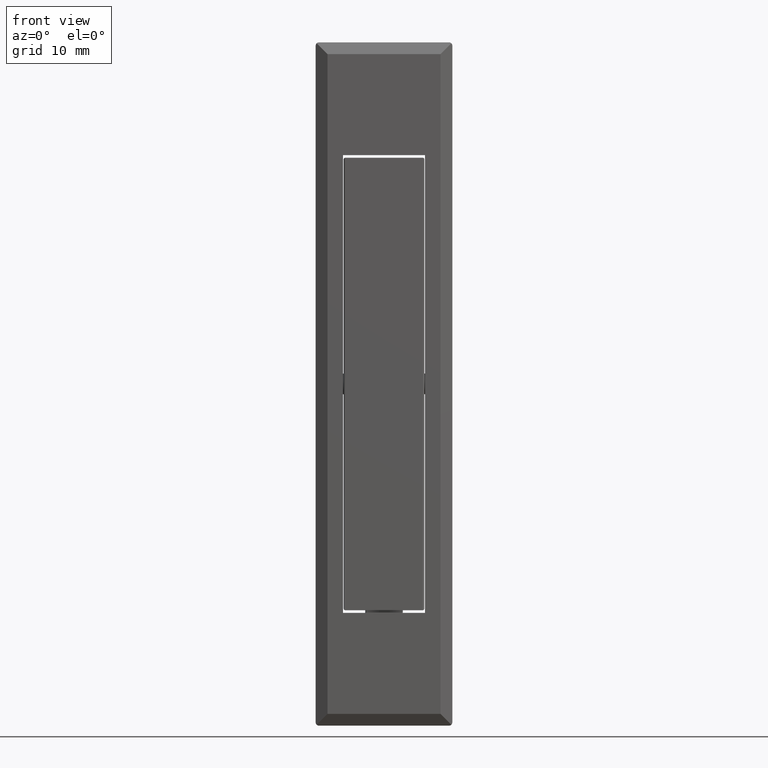
[diagram: clean part render]
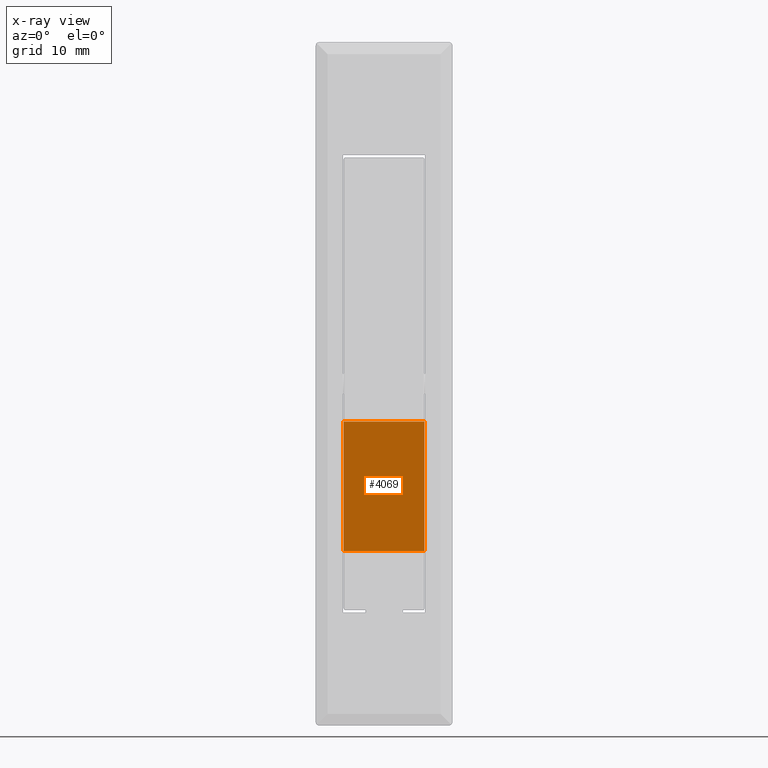
[diagram: x-ray — body ghosted, one internal face saturated and labeled with its STEP entity id]
A machine part, front view, then the same camera in x-ray: the body is ghosted and one INTERNAL B-rep face — a face not visible from any outside direction — is saturated and labeled: STEP entity #4069.
In plain terms, the highlighted face is a freeform B-spline surface patch.
Its self-contained STEP definition (entity closure, byte-faithful):
#3910=CARTESIAN_POINT('',(4.0,5.900000000000000,-5.500000000000000));
#3911=VERTEX_POINT('',#3910);
#3936=CARTESIAN_POINT('',(4.0,-5.900000000000000,-5.500000000000000));
#3937=VERTEX_POINT('',#3936);
#3953=CARTESIAN_POINT('',(4.0,5.900000000000000,-5.500000000000000));
#3954=CARTESIAN_POINT('',(4.0,-5.900000000000000,-5.500000000000000));
#3955=QUASI_UNIFORM_CURVE('',1,(#3953,#3954),.UNSPECIFIED.,.F.,.U.);
#3956=EDGE_CURVE('',#3911,#3937,#3955,.T.);
#4007=CARTESIAN_POINT('',(4.0,5.900000000000000,-24.500000000000000));
#4008=VERTEX_POINT('',#4007);
#4024=CARTESIAN_POINT('',(4.0,-5.900000000000000,-24.500000000000000));
#4025=VERTEX_POINT('',#4024);
#4026=CARTESIAN_POINT('',(4.0,5.900000000000000,-24.500000000000000));
#4027=CARTESIAN_POINT('',(4.0,-5.900000000000000,-24.500000000000000));
#4028=QUASI_UNIFORM_CURVE('',1,(#4026,#4027),.UNSPECIFIED.,.F.,.U.);
#4029=EDGE_CURVE('',#4008,#4025,#4028,.T.);
#4050=CARTESIAN_POINT('',(4.0,6.489410087899266,-25.449049963174311));
#4051=CARTESIAN_POINT('',(4.0,6.489410087899266,-4.550949527205973));
#4052=CARTESIAN_POINT('',(4.0,-6.489410298899710,-25.449049963174311));
#4053=CARTESIAN_POINT('',(4.0,-6.489410298899710,-4.550949527205973));
#4054=B_SPLINE_SURFACE_WITH_KNOTS('',1,1,((#4050,#4052),(#4051,#4053)),.UNSPECIFIED.,.F.,.F.,.U.,(2,2),(2,2),(0.0,20.898100435968342),(0.0,12.978820386798979),.UNSPECIFIED.);
#4055=ORIENTED_EDGE('',*,*,#3956,.T.);
#4056=CARTESIAN_POINT('',(4.0,-5.900000000000000,-5.500000000000000));
#4057=CARTESIAN_POINT('',(4.0,-5.900000000000000,-24.500000000000000));
#4058=QUASI_UNIFORM_CURVE('',1,(#4056,#4057),.UNSPECIFIED.,.F.,.U.);
#4059=EDGE_CURVE('',#3937,#4025,#4058,.T.);
#4060=ORIENTED_EDGE('',*,*,#4059,.T.);
#4061=ORIENTED_EDGE('',*,*,#4029,.F.);
#4062=CARTESIAN_POINT('',(4.0,5.900000000000000,-5.500000000000000));
#4063=CARTESIAN_POINT('',(4.0,5.900000000000000,-24.500000000000000));
#4064=QUASI_UNIFORM_CURVE('',1,(#4062,#4063),.UNSPECIFIED.,.F.,.U.);
#4065=EDGE_CURVE('',#3911,#4008,#4064,.T.);
#4066=ORIENTED_EDGE('',*,*,#4065,.F.);
#4067=EDGE_LOOP('',(#4055,#4060,#4061,#4066));
#4068=FACE_OUTER_BOUND('',#4067,.T.);
#4069=ADVANCED_FACE('',(#4068),#4054,.T.);